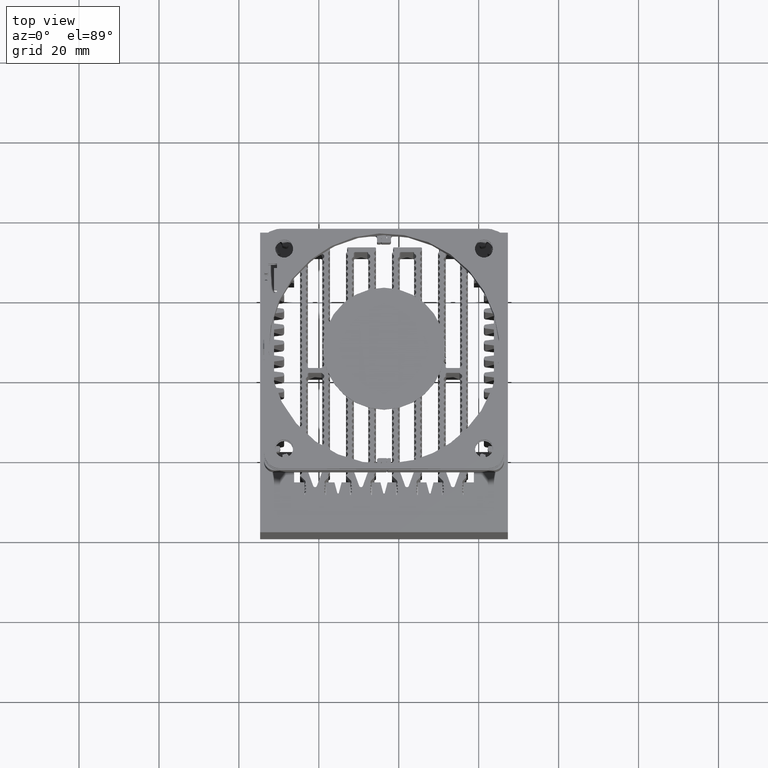
[diagram: clean part render]
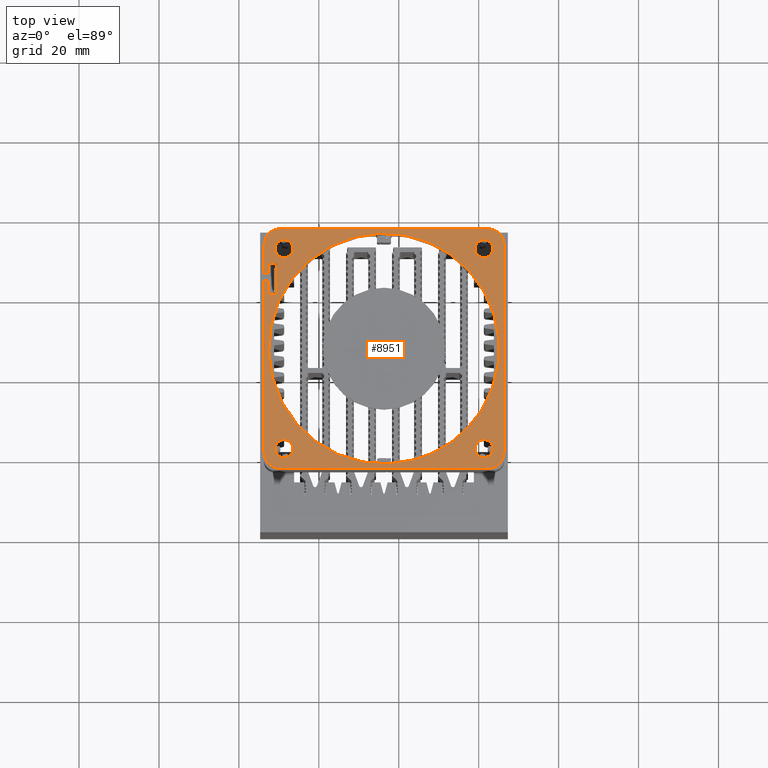
[diagram: same view with one face highlighted and labeled with its STEP entity id]
A machine part, top view. The second image highlights one B-rep face of the part: STEP entity #8951.
In plain terms, the highlighted planar face has unit normal (-0, -0, -1).
Its self-contained STEP definition (entity closure, byte-faithful):
#175 = ORIENTED_EDGE ( 'NONE', *, *, #11420, .T. ) ;
#251 = DIRECTION ( 'NONE',  ( -0.7679149873614932176, 0.6405517716668948092, -8.968310171678817306E-44 ) ) ;
#292 = DIRECTION ( 'NONE',  ( 0.000000000000000000, 6.726232628759121940E-44, -1.000000000000000000 ) ) ;
#316 = CARTESIAN_POINT ( 'NONE',  ( -16.80000000000001492, 29.50000000000004263, 0.000000000000000000 ) ) ;
#320 = CIRCLE ( 'NONE', #30676, 2.250000000000001776 ) ;
#467 = VERTEX_POINT ( 'NONE', #16506 ) ;
#697 = CARTESIAN_POINT ( 'NONE',  ( 0.000000000000000000, 0.000000000000000000, 0.000000000000000000 ) ) ;
#790 = CARTESIAN_POINT ( 'NONE',  ( -18.81872165881002346, 29.91337935940004655, -1.665334536937734811E-13 ) ) ;
#869 = DIRECTION ( 'NONE',  ( 1.000000000000000000, -5.859510407743877253E-14, 2.802596928649631964E-45 ) ) ;
#1074 = DIRECTION ( 'NONE',  ( -1.000000000000000000, -2.204349371942997434E-57, -2.802596928649630408E-45 ) ) ;
#1160 = FACE_BOUND ( 'NONE', #24459, .T. ) ;
#1396 = EDGE_CURVE ( 'NONE', #3859, #7448, #19167, .T. ) ;
#1468 = VERTEX_POINT ( 'NONE', #31006 ) ;
#1591 = CARTESIAN_POINT ( 'NONE',  ( -30.00000000000003908, -26.00000000000003908, 0.000000000000000000 ) ) ;
#1594 = VERTEX_POINT ( 'NONE', #10035 ) ;
#1791 = AXIS2_PLACEMENT_3D ( 'NONE', #20380, #7656, #30211 ) ;
#1808 = VERTEX_POINT ( 'NONE', #24646 ) ;
#1933 = CIRCLE ( 'NONE', #23584, 2.250000000000001776 ) ;
#2032 = DIRECTION ( 'NONE',  ( 0.4637459839581876686, -0.8859682061804772246, 8.968310171678822284E-44 ) ) ;
#2288 = ORIENTED_EDGE ( 'NONE', *, *, #7772, .T. ) ;
#2380 = VERTEX_POINT ( 'NONE', #14769 ) ;
#2445 = DIRECTION ( 'NONE',  ( -3.469446951953611033E-14, -1.000000000000000000, 6.726232628759115966E-44 ) ) ;
#2500 = EDGE_CURVE ( 'NONE', #12301, #467, #1933, .T. ) ;
#2773 = DIRECTION ( 'NONE',  ( 1.925127237127000026E-12, 1.000000000000000000, -6.186118493558990686E-14 ) ) ;
#2845 = VERTEX_POINT ( 'NONE', #15350 ) ;
#2976 = LINE ( 'NONE', #7825, #4858 ) ;
#3077 = LINE ( 'NONE', #25662, #10264 ) ;
#3116 = FACE_BOUND ( 'NONE', #31185, .T. ) ;
#3129 = ORIENTED_EDGE ( 'NONE', *, *, #28561, .F. ) ;
#3262 = ORIENTED_EDGE ( 'NONE', *, *, #10285, .F. ) ;
#3525 = CARTESIAN_POINT ( 'NONE',  ( -26.00000000000002842, 30.00000000000004263, 0.000000000000000000 ) ) ;
#3581 = DIRECTION ( 'NONE',  ( 0.000000000000000000, 6.726232628759121940E-44, -1.000000000000000000 ) ) ;
#3665 = CIRCLE ( 'NONE', #15517, 0.4999999999999998335 ) ;
#3703 = ORIENTED_EDGE ( 'NONE', *, *, #18834, .T. ) ;
#3738 = AXIS2_PLACEMENT_3D ( 'NONE', #6626, #6301, #6148 ) ;
#3859 = VERTEX_POINT ( 'NONE', #26520 ) ;
#3892 = CARTESIAN_POINT ( 'NONE',  ( -17.08127834119001776, 29.91337935940003945, 0.000000000000000000 ) ) ;
#4138 = CARTESIAN_POINT ( 'NONE',  ( 26.00000000000003553, -30.00000000000004974, 0.000000000000000000 ) ) ;
#4409 = CARTESIAN_POINT ( 'NONE',  ( -16.80000000000001492, 29.50000000000004263, 0.000000000000000000 ) ) ;
#4411 = VECTOR ( 'NONE', #23850, 1000.000000000000000 ) ;
#4629 = ORIENTED_EDGE ( 'NONE', *, *, #5340, .T. ) ;
#4858 = VECTOR ( 'NONE', #27818, 1000.000000000000000 ) ;
#4907 = DIRECTION ( 'NONE',  ( 0.000000000000000000, -6.726232628759121940E-44, 1.000000000000000000 ) ) ;
#5064 = VERTEX_POINT ( 'NONE', #8342 ) ;
#5124 = CARTESIAN_POINT ( 'NONE',  ( 20.40003063723189669, -20.40003063723189669, -1.372153516998349021E-42 ) ) ;
#5135 = CARTESIAN_POINT ( 'NONE',  ( -21.30000000000002203, 26.80000000000003268, 0.000000000000000000 ) ) ;
#5211 = EDGE_CURVE ( 'NONE', #467, #12301, #22961, .T. ) ;
#5281 = VECTOR ( 'NONE', #7044, 1000.000000000000000 ) ;
#5340 = EDGE_CURVE ( 'NONE', #6414, #25761, #21442, .T. ) ;
#5380 = DIRECTION ( 'NONE',  ( -0.7679149873614932176, 0.6405517716668948092, -8.968310171678817306E-44 ) ) ;
#5398 = DIRECTION ( 'NONE',  ( 1.000000000000000000, 2.204349371942997434E-57, 2.802596928649630408E-45 ) ) ;
#5437 = CARTESIAN_POINT ( 'NONE',  ( -17.08127834119001776, 29.08662064060004226, -1.110223024625156540E-13 ) ) ;
#5561 = CARTESIAN_POINT ( 'NONE',  ( -30.00000000000003197, 26.00000000000002842, 0.000000000000000000 ) ) ;
#5707 = LINE ( 'NONE', #7814, #17759 ) ;
#5710 = ORIENTED_EDGE ( 'NONE', *, *, #22754, .F. ) ;
#5788 = CARTESIAN_POINT ( 'NONE',  ( -19.10000000000001918, 29.50000000000003553, 0.000000000000000000 ) ) ;
#6001 = EDGE_CURVE ( 'NONE', #13407, #6661, #6456, .T. ) ;
#6129 = CARTESIAN_POINT ( 'NONE',  ( -21.30000000000002203, 26.80000000000003268, 0.000000000000000000 ) ) ;
#6148 = DIRECTION ( 'NONE',  ( -1.000000000000000000, -3.392348130799086764E-14, -2.802596928649631964E-45 ) ) ;
#6224 = VERTEX_POINT ( 'NONE', #29064 ) ;
#6260 = CARTESIAN_POINT ( 'NONE',  ( -18.81872165881002346, 29.08662064060004226, 0.000000000000000000 ) ) ;
#6301 = DIRECTION ( 'NONE',  ( 0.000000000000000000, 6.726232628759121940E-44, -1.000000000000000000 ) ) ;
#6306 = VERTEX_POINT ( 'NONE', #29392 ) ;
#6330 = ORIENTED_EDGE ( 'NONE', *, *, #10525, .T. ) ;
#6414 = VERTEX_POINT ( 'NONE', #17742 ) ;
#6456 = CIRCLE ( 'NONE', #1791, 2.250000000000001776 ) ;
#6626 = CARTESIAN_POINT ( 'NONE',  ( -25.00000000000004263, -25.00000000000003553, 0.000000000000000000 ) ) ;
#6659 = ORIENTED_EDGE ( 'NONE', *, *, #26169, .F. ) ;
#6661 = VERTEX_POINT ( 'NONE', #21766 ) ;
#6800 = EDGE_CURVE ( 'NONE', #11504, #1808, #23665, .T. ) ;
#6804 = CARTESIAN_POINT ( 'NONE',  ( -19.10000000000001918, 29.50000000000003553, 0.000000000000000000 ) ) ;
#6817 = ORIENTED_EDGE ( 'NONE', *, *, #14811, .F. ) ;
#6863 = DIRECTION ( 'NONE',  ( -2.204349371942998566E-57, -1.000000000000000000, 6.726232628759112979E-44 ) ) ;
#6985 = LINE ( 'NONE', #14871, #8699 ) ;
#7038 = DIRECTION ( 'NONE',  ( 0.000000000000000000, 6.726232628759121940E-44, -1.000000000000000000 ) ) ;
#7044 = DIRECTION ( 'NONE',  ( -2.204349371942998566E-57, -1.000000000000000000, 6.726232628759112979E-44 ) ) ;
#7246 = CARTESIAN_POINT ( 'NONE',  ( 0.000000000000000000, 0.000000000000000000, 0.000000000000000000 ) ) ;
#7291 = VERTEX_POINT ( 'NONE', #14935 ) ;
#7397 = ORIENTED_EDGE ( 'NONE', *, *, #16866, .T. ) ;
#7413 = VERTEX_POINT ( 'NONE', #5437 ) ;
#7419 = DIRECTION ( 'NONE',  ( 2.775557561562888827E-14, 1.000000000000000000, -6.726232628759115966E-44 ) ) ;
#7448 = VERTEX_POINT ( 'NONE', #28473 ) ;
#7485 = VERTEX_POINT ( 'NONE', #23781 ) ;
#7576 = DIRECTION ( 'NONE',  ( 0.000000000000000000, -6.726232628759121940E-44, 1.000000000000000000 ) ) ;
#7656 = DIRECTION ( 'NONE',  ( 0.000000000000000000, 6.726232628759121940E-44, -1.000000000000000000 ) ) ;
#7772 = EDGE_CURVE ( 'NONE', #19438, #9939, #5707, .T. ) ;
#7814 = CARTESIAN_POINT ( 'NONE',  ( -26.00000000000002842, 30.00000000000004263, 0.000000000000000000 ) ) ;
#7825 = CARTESIAN_POINT ( 'NONE',  ( 26.00000000000003553, -30.00000000000004974, 0.000000000000000000 ) ) ;
#7831 = CIRCLE ( 'NONE', #31585, 4.000000000000003553 ) ;
#7912 = CIRCLE ( 'NONE', #8431, 0.5000000000000004441 ) ;
#7940 = ORIENTED_EDGE ( 'NONE', *, *, #29201, .T. ) ;
#7950 = DIRECTION ( 'NONE',  ( 0.000000000000000000, -6.726232628759121940E-44, 1.000000000000000000 ) ) ;
#7968 = AXIS2_PLACEMENT_3D ( 'NONE', #6804, #9383, #2445 ) ;
#8013 = ORIENTED_EDGE ( 'NONE', *, *, #13966, .T. ) ;
#8333 = VERTEX_POINT ( 'NONE', #5124 ) ;
#8342 = CARTESIAN_POINT ( 'NONE',  ( -26.00000000000003553, -30.00000000000003908, 0.000000000000000000 ) ) ;
#8431 = AXIS2_PLACEMENT_3D ( 'NONE', #316, #29517, #7419 ) ;
#8541 = EDGE_LOOP ( 'NONE', ( #3262, #30468 ) ) ;
#8699 = VECTOR ( 'NONE', #29400, 1000.000000000000000 ) ;
#8951 = ADVANCED_FACE ( 'NONE', ( #27958, #1160, #25227, #10996, #30686, #3116 ), #25543, .F. ) ;
#9131 = DIRECTION ( 'NONE',  ( 1.000000000000000000, 0.000000000000000000, 2.802596928649631653E-45 ) ) ;
#9383 = DIRECTION ( 'NONE',  ( 0.000000000000000000, -6.726232628759121940E-44, 1.000000000000000000 ) ) ;
#9442 = CARTESIAN_POINT ( 'NONE',  ( -25.00000000000004263, 25.00000000000003908, 0.000000000000000000 ) ) ;
#9562 = VECTOR ( 'NONE', #18368, 1000.000000000000000 ) ;
#9939 = VERTEX_POINT ( 'NONE', #29639 ) ;
#9968 = DIRECTION ( 'NONE',  ( 0.9645755590524175416, -0.2638067301619048122, 3.082856621514592080E-44 ) ) ;
#9997 = AXIS2_PLACEMENT_3D ( 'NONE', #20829, #3581, #18726 ) ;
#10035 = CARTESIAN_POINT ( 'NONE',  ( -22.75000000000004263, 25.00000000000003908, 0.000000000000000000 ) ) ;
#10152 = CARTESIAN_POINT ( 'NONE',  ( -26.00000000000003553, -26.00000000000002842, 0.000000000000000000 ) ) ;
#10264 = VECTOR ( 'NONE', #12584, 1000.000000000000000 ) ;
#10285 = EDGE_CURVE ( 'NONE', #6306, #1468, #27615, .T. ) ;
#10335 = EDGE_CURVE ( 'NONE', #1468, #6306, #320, .T. ) ;
#10459 = DIRECTION ( 'NONE',  ( 0.000000000000000000, -6.726232628759121940E-44, 1.000000000000000000 ) ) ;
#10525 = EDGE_CURVE ( 'NONE', #29249, #8333, #16297, .T. ) ;
#10531 = DIRECTION ( 'NONE',  ( -2.802596928649630408E-45, -6.726232628759121940E-44, 1.000000000000000000 ) ) ;
#10996 = FACE_BOUND ( 'NONE', #8541, .T. ) ;
#11248 = VERTEX_POINT ( 'NONE', #19540 ) ;
#11361 = ORIENTED_EDGE ( 'NONE', *, *, #22539, .T. ) ;
#11420 = EDGE_CURVE ( 'NONE', #6224, #14055, #17580, .T. ) ;
#11504 = VERTEX_POINT ( 'NONE', #4138 ) ;
#11670 = DIRECTION ( 'NONE',  ( 0.000000000000000000, 1.000000000000000000, -6.726232628759109992E-44 ) ) ;
#11672 = VERTEX_POINT ( 'NONE', #24770 ) ;
#11744 = DIRECTION ( 'NONE',  ( 1.000000000000000000, 2.204349371942997434E-57, 2.802596928649630408E-45 ) ) ;
#11873 = DIRECTION ( 'NONE',  ( -1.000000000000000000, -3.392348130799086764E-14, -2.802596928649631964E-45 ) ) ;
#12141 = ORIENTED_EDGE ( 'NONE', *, *, #15152, .F. ) ;
#12301 = VERTEX_POINT ( 'NONE', #22940 ) ;
#12444 = DIRECTION ( 'NONE',  ( -0.5625566823793881621, -0.8267587187990799169, 2.242077542919708309E-44 ) ) ;
#12584 = DIRECTION ( 'NONE',  ( -2.204349371942998566E-57, -1.000000000000000000, 6.726232628759112979E-44 ) ) ;
#12598 = EDGE_CURVE ( 'NONE', #26734, #14055, #22365, .T. ) ;
#12798 = ORIENTED_EDGE ( 'NONE', *, *, #18098, .F. ) ;
#13190 = AXIS2_PLACEMENT_3D ( 'NONE', #14921, #24766, #251 ) ;
#13202 = ORIENTED_EDGE ( 'NONE', *, *, #1396, .T. ) ;
#13407 = VERTEX_POINT ( 'NONE', #19711 ) ;
#13545 = CIRCLE ( 'NONE', #31601, 4.000000000000003553 ) ;
#13685 = CIRCLE ( 'NONE', #28644, 2.250000000000001776 ) ;
#13966 = EDGE_CURVE ( 'NONE', #26734, #11248, #28033, .T. ) ;
#14028 = ORIENTED_EDGE ( 'NONE', *, *, #30217, .F. ) ;
#14055 = VERTEX_POINT ( 'NONE', #6260 ) ;
#14126 = CARTESIAN_POINT ( 'NONE',  ( -25.00000000000004263, -25.00000000000003553, 0.000000000000000000 ) ) ;
#14158 = CARTESIAN_POINT ( 'NONE',  ( -16.80000000000001492, 30.00000000000004263, 0.000000000000000000 ) ) ;
#14225 = AXIS2_PLACEMENT_3D ( 'NONE', #25757, #25913, #18801 ) ;
#14299 = VECTOR ( 'NONE', #20166, 1000.000000000000000 ) ;
#14571 = CARTESIAN_POINT ( 'NONE',  ( -26.00000000000002842, 26.00000000000003908, 0.000000000000000000 ) ) ;
#14769 = CARTESIAN_POINT ( 'NONE',  ( -16.80000000000001492, 29.00000000000004263, 0.000000000000000000 ) ) ;
#14811 = EDGE_CURVE ( 'NONE', #28484, #13407, #20236, .T. ) ;
#14871 = CARTESIAN_POINT ( 'NONE',  ( -13.50000000000001776, 29.00000000000002132, 0.000000000000000000 ) ) ;
#14921 = CARTESIAN_POINT ( 'NONE',  ( 0.000000000000000000, 0.000000000000000000, 0.000000000000000000 ) ) ;
#14935 = CARTESIAN_POINT ( 'NONE',  ( 30.00000000000003908, 26.00000000000002842, 0.000000000000000000 ) ) ;
#15117 = CARTESIAN_POINT ( 'NONE',  ( -22.15434738538002435, 18.47991861259001212, 0.000000000000000000 ) ) ;
#15121 = DIRECTION ( 'NONE',  ( 0.8859682061804772246, 0.4637459839581876686, -4.484155085839411142E-44 ) ) ;
#15146 = CARTESIAN_POINT ( 'NONE',  ( -13.50000000000001776, 29.00000000000002132, 0.000000000000000000 ) ) ;
#15152 = EDGE_CURVE ( 'NONE', #6414, #5064, #7831, .T. ) ;
#15350 = CARTESIAN_POINT ( 'NONE',  ( -23.00657153609002137, 26.04342846391002908, 0.000000000000000000 ) ) ;
#15517 = AXIS2_PLACEMENT_3D ( 'NONE', #5788, #10459, #18033 ) ;
#15658 = EDGE_CURVE ( 'NONE', #7291, #1808, #23953, .T. ) ;
#15814 = EDGE_LOOP ( 'NONE', ( #12798, #16072, #28883, #18978, #12141, #4629, #24396, #2288, #26818, #175, #23897, #8013, #7397, #11361, #6659, #26546, #26711, #3703, #19513, #13202 ) ) ;
#16072 = ORIENTED_EDGE ( 'NONE', *, *, #15658, .T. ) ;
#16297 = CIRCLE ( 'NONE', #13190, 28.85000000000004050 ) ;
#16506 = CARTESIAN_POINT ( 'NONE',  ( 26.04342846391003619, 23.00657153609001782, 0.000000000000000000 ) ) ;
#16576 = VERTEX_POINT ( 'NONE', #5135 ) ;
#16658 = CARTESIAN_POINT ( 'NONE',  ( -13.50000000000002132, 26.80000000000003268, 0.000000000000000000 ) ) ;
#16700 = DIRECTION ( 'NONE',  ( 0.8859682061804772246, 0.4637459839581876686, -4.484155085839411142E-44 ) ) ;
#16866 = EDGE_CURVE ( 'NONE', #11248, #16576, #24134, .T. ) ;
#17230 = AXIS2_PLACEMENT_3D ( 'NONE', #4409, #21658, #12444 ) ;
#17239 = CARTESIAN_POINT ( 'NONE',  ( 26.00000000000002132, -26.00000000000003908, 0.000000000000000000 ) ) ;
#17361 = AXIS2_PLACEMENT_3D ( 'NONE', #14126, #23977, #11873 ) ;
#17384 = VERTEX_POINT ( 'NONE', #16658 ) ;
#17399 = CARTESIAN_POINT ( 'NONE',  ( -25.00000000000004263, 25.00000000000003908, 0.000000000000000000 ) ) ;
#17580 = LINE ( 'NONE', #790, #14299 ) ;
#17615 = CARTESIAN_POINT ( 'NONE',  ( 0.000000000000000000, 0.000000000000000000, 0.000000000000000000 ) ) ;
#17742 = CARTESIAN_POINT ( 'NONE',  ( -30.00000000000003908, -26.00000000000003908, 0.000000000000000000 ) ) ;
#17751 = VECTOR ( 'NONE', #2773, 1000.000000000000000 ) ;
#17759 = VECTOR ( 'NONE', #5398, 1000.000000000000000 ) ;
#17829 = VECTOR ( 'NONE', #1074, 1000.000000000000000 ) ;
#17961 = EDGE_CURVE ( 'NONE', #3859, #22133, #7912, .T. ) ;
#18033 = DIRECTION ( 'NONE',  ( 0.5625566823793881621, 0.8267587187990799169, -2.242077542919708309E-44 ) ) ;
#18098 = EDGE_CURVE ( 'NONE', #7291, #7448, #13545, .T. ) ;
#18179 = VECTOR ( 'NONE', #11744, 1000.000000000000000 ) ;
#18312 = EDGE_CURVE ( 'NONE', #11504, #5064, #2976, .T. ) ;
#18368 = DIRECTION ( 'NONE',  ( 1.000000000000000000, 2.204349371942997434E-57, 2.802596928649630408E-45 ) ) ;
#18433 = DIRECTION ( 'NONE',  ( 1.000000000000000000, 2.204349371942997151E-57, 2.802596928649630408E-45 ) ) ;
#18586 = EDGE_CURVE ( 'NONE', #7413, #2380, #30089, .T. ) ;
#18644 = DIRECTION ( 'NONE',  ( 0.000000000000000000, 6.726232628759121940E-44, -1.000000000000000000 ) ) ;
#18726 = DIRECTION ( 'NONE',  ( -1.000000000000000000, 3.546545773108135933E-14, -2.802596928649631964E-45 ) ) ;
#18792 = CARTESIAN_POINT ( 'NONE',  ( 26.00000000000003553, 26.00000000000002842, 0.000000000000000000 ) ) ;
#18801 = DIRECTION ( 'NONE',  ( -0.8859682061804772246, -0.4637459839581876686, 4.484155085839411142E-44 ) ) ;
#18834 = EDGE_CURVE ( 'NONE', #7413, #22133, #20048, .T. ) ;
#18978 = ORIENTED_EDGE ( 'NONE', *, *, #18312, .T. ) ;
#19167 = LINE ( 'NONE', #14158, #18179 ) ;
#19307 = VERTEX_POINT ( 'NONE', #15146 ) ;
#19438 = VERTEX_POINT ( 'NONE', #3525 ) ;
#19513 = ORIENTED_EDGE ( 'NONE', *, *, #17961, .F. ) ;
#19540 = CARTESIAN_POINT ( 'NONE',  ( -21.30000000000002203, 29.00000000000002132, 0.000000000000000000 ) ) ;
#19711 = CARTESIAN_POINT ( 'NONE',  ( -23.00657153609002137, -26.04342846391003974, 0.000000000000000000 ) ) ;
#19791 = CIRCLE ( 'NONE', #9997, 2.250000000000001776 ) ;
#19978 = EDGE_CURVE ( 'NONE', #8333, #11672, #29067, .T. ) ;
#19980 = DIRECTION ( 'NONE',  ( 0.000000000000000000, -6.726232628759121940E-44, 1.000000000000000000 ) ) ;
#20048 = LINE ( 'NONE', #24877, #17751 ) ;
#20166 = DIRECTION ( 'NONE',  ( -1.985287463286999814E-12, -1.000000000000000000, -5.493201602962992836E-13 ) ) ;
#20236 = CIRCLE ( 'NONE', #3738, 2.250000000000001776 ) ;
#20380 = CARTESIAN_POINT ( 'NONE',  ( -25.00000000000004263, -25.00000000000003553, 0.000000000000000000 ) ) ;
#20401 = CARTESIAN_POINT ( 'NONE',  ( 25.00000000000003553, 25.00000000000003553, 0.000000000000000000 ) ) ;
#20812 = AXIS2_PLACEMENT_3D ( 'NONE', #14571, #4907, #11670 ) ;
#20829 = CARTESIAN_POINT ( 'NONE',  ( -25.00000000000004263, 25.00000000000003908, 0.000000000000000000 ) ) ;
#21085 = CARTESIAN_POINT ( 'NONE',  ( -19.10000000000001918, 29.00000000000004263, 0.000000000000000000 ) ) ;
#21120 = EDGE_LOOP ( 'NONE', ( #26220, #6817, #22900 ) ) ;
#21223 = CARTESIAN_POINT ( 'NONE',  ( 25.00000000000002842, -25.00000000000003908, 0.000000000000000000 ) ) ;
#21435 = LINE ( 'NONE', #6129, #9562 ) ;
#21442 = LINE ( 'NONE', #1591, #4411 ) ;
#21658 = DIRECTION ( 'NONE',  ( 0.000000000000000000, -6.726232628759121940E-44, 1.000000000000000000 ) ) ;
#21766 = CARTESIAN_POINT ( 'NONE',  ( -27.25000000000003908, -25.00000000000003197, 0.000000000000000000 ) ) ;
#22133 = VERTEX_POINT ( 'NONE', #3892 ) ;
#22365 = CIRCLE ( 'NONE', #7968, 0.5000000000000004441 ) ;
#22539 = EDGE_CURVE ( 'NONE', #16576, #17384, #21435, .T. ) ;
#22754 = EDGE_CURVE ( 'NONE', #2845, #1594, #13685, .T. ) ;
#22760 = VECTOR ( 'NONE', #6863, 1000.000000000000000 ) ;
#22900 = ORIENTED_EDGE ( 'NONE', *, *, #24428, .F. ) ;
#22940 = CARTESIAN_POINT ( 'NONE',  ( 27.25000000000003908, 25.00000000000003197, 0.000000000000000000 ) ) ;
#22961 = CIRCLE ( 'NONE', #29641, 2.250000000000001776 ) ;
#23185 = CARTESIAN_POINT ( 'NONE',  ( -19.10000000000001918, 29.00000000000004263, 0.000000000000000000 ) ) ;
#23282 = AXIS2_PLACEMENT_3D ( 'NONE', #9442, #7038, #16700 ) ;
#23388 = AXIS2_PLACEMENT_3D ( 'NONE', #17615, #7950, #5380 ) ;
#23584 = AXIS2_PLACEMENT_3D ( 'NONE', #20401, #30233, #869 ) ;
#23665 = CIRCLE ( 'NONE', #25231, 4.000000000000007105 ) ;
#23781 = CARTESIAN_POINT ( 'NONE',  ( -27.25000000000003197, 25.00000000000004263, 0.000000000000000000 ) ) ;
#23790 = CARTESIAN_POINT ( 'NONE',  ( 30.00000000000003908, 26.00000000000002842, 0.000000000000000000 ) ) ;
#23795 = DIRECTION ( 'NONE',  ( 0.000000000000000000, -6.726232628759121940E-44, 1.000000000000000000 ) ) ;
#23850 = DIRECTION ( 'NONE',  ( 2.204349371942998566E-57, 1.000000000000000000, -6.726232628759112979E-44 ) ) ;
#23897 = ORIENTED_EDGE ( 'NONE', *, *, #12598, .F. ) ;
#23953 = LINE ( 'NONE', #23790, #22760 ) ;
#23977 = DIRECTION ( 'NONE',  ( 0.000000000000000000, 6.726232628759121940E-44, -1.000000000000000000 ) ) ;
#24026 = ORIENTED_EDGE ( 'NONE', *, *, #19978, .T. ) ;
#24134 = LINE ( 'NONE', #31540, #5281 ) ;
#24145 = CARTESIAN_POINT ( 'NONE',  ( 25.00000000000003553, 25.00000000000003553, 0.000000000000000000 ) ) ;
#24396 = ORIENTED_EDGE ( 'NONE', *, *, #29959, .F. ) ;
#24428 = EDGE_CURVE ( 'NONE', #6661, #28484, #31237, .T. ) ;
#24459 = EDGE_LOOP ( 'NONE', ( #5710, #14028, #3129 ) ) ;
#24646 = CARTESIAN_POINT ( 'NONE',  ( 30.00000000000003908, -26.00000000000003908, 0.000000000000000000 ) ) ;
#24766 = DIRECTION ( 'NONE',  ( 0.000000000000000000, -6.726232628759121940E-44, 1.000000000000000000 ) ) ;
#24770 = CARTESIAN_POINT ( 'NONE',  ( 27.82800487866003536, -7.610824165169009170, 0.000000000000000000 ) ) ;
#24815 = DIRECTION ( 'NONE',  ( 0.000000000000000000, -1.000000000000000000, 6.726232628759109992E-44 ) ) ;
#24875 = AXIS2_PLACEMENT_3D ( 'NONE', #7246, #19980, #9968 ) ;
#24877 = CARTESIAN_POINT ( 'NONE',  ( -17.08127834119001776, 29.08662064060004226, -1.110223024625156540E-13 ) ) ;
#25150 = DIRECTION ( 'NONE',  ( -1.000000000000000000, 0.000000000000000000, -2.802596928649631653E-45 ) ) ;
#25227 = FACE_BOUND ( 'NONE', #21120, .T. ) ;
#25231 = AXIS2_PLACEMENT_3D ( 'NONE', #17239, #7576, #24815 ) ;
#25543 = PLANE ( 'NONE',  #27659 ) ;
#25662 = CARTESIAN_POINT ( 'NONE',  ( -13.50000000000001776, 29.00000000000002132, 0.000000000000000000 ) ) ;
#25757 = CARTESIAN_POINT ( 'NONE',  ( 25.00000000000002842, -25.00000000000003908, 0.000000000000000000 ) ) ;
#25761 = VERTEX_POINT ( 'NONE', #5561 ) ;
#25913 = DIRECTION ( 'NONE',  ( 0.000000000000000000, 6.726232628759121940E-44, -1.000000000000000000 ) ) ;
#26017 = EDGE_LOOP ( 'NONE', ( #31325, #30527 ) ) ;
#26052 = EDGE_CURVE ( 'NONE', #19307, #2380, #6985, .T. ) ;
#26169 = EDGE_CURVE ( 'NONE', #19307, #17384, #3077, .T. ) ;
#26220 = ORIENTED_EDGE ( 'NONE', *, *, #6001, .F. ) ;
#26520 = CARTESIAN_POINT ( 'NONE',  ( -16.80000000000001492, 30.00000000000004263, 0.000000000000000000 ) ) ;
#26546 = ORIENTED_EDGE ( 'NONE', *, *, #26052, .T. ) ;
#26711 = ORIENTED_EDGE ( 'NONE', *, *, #18586, .F. ) ;
#26715 = CARTESIAN_POINT ( 'NONE',  ( -22.75000000000004263, -25.00000000000003553, 0.000000000000000000 ) ) ;
#26734 = VERTEX_POINT ( 'NONE', #23185 ) ;
#26818 = ORIENTED_EDGE ( 'NONE', *, *, #27891, .F. ) ;
#27253 = DIRECTION ( 'NONE',  ( 0.000000000000000000, -6.726232628759121940E-44, 1.000000000000000000 ) ) ;
#27615 = CIRCLE ( 'NONE', #14225, 2.250000000000001776 ) ;
#27659 = AXIS2_PLACEMENT_3D ( 'NONE', #697, #10531, #18433 ) ;
#27818 = DIRECTION ( 'NONE',  ( -1.000000000000000000, -2.204349371942997434E-57, -2.802596928649630408E-45 ) ) ;
#27891 = EDGE_CURVE ( 'NONE', #6224, #9939, #3665, .T. ) ;
#27958 = FACE_OUTER_BOUND ( 'NONE', #15814, .T. ) ;
#28033 = LINE ( 'NONE', #21085, #17829 ) ;
#28473 = CARTESIAN_POINT ( 'NONE',  ( 26.00000000000003553, 30.00000000000002487, 0.000000000000000000 ) ) ;
#28484 = VERTEX_POINT ( 'NONE', #26715 ) ;
#28506 = DIRECTION ( 'NONE',  ( 0.000000000000000000, 6.726232628759121940E-44, -1.000000000000000000 ) ) ;
#28561 = EDGE_CURVE ( 'NONE', #1594, #7485, #30490, .T. ) ;
#28644 = AXIS2_PLACEMENT_3D ( 'NONE', #17399, #292, #15121 ) ;
#28883 = ORIENTED_EDGE ( 'NONE', *, *, #6800, .F. ) ;
#29064 = CARTESIAN_POINT ( 'NONE',  ( -18.81872165881002346, 29.91337935940004655, -1.665334536937734811E-13 ) ) ;
#29067 = CIRCLE ( 'NONE', #23388, 28.85000000000004050 ) ;
#29201 = EDGE_CURVE ( 'NONE', #11672, #29249, #30539, .T. ) ;
#29249 = VERTEX_POINT ( 'NONE', #15117 ) ;
#29392 = CARTESIAN_POINT ( 'NONE',  ( 23.00657153609002137, -26.04342846391002908, 0.000000000000000000 ) ) ;
#29400 = DIRECTION ( 'NONE',  ( -1.000000000000000000, -2.204349371942997434E-57, -2.802596928649630408E-45 ) ) ;
#29517 = DIRECTION ( 'NONE',  ( 0.000000000000000000, -6.726232628759121940E-44, 1.000000000000000000 ) ) ;
#29576 = CIRCLE ( 'NONE', #20812, 4.000000000000007105 ) ;
#29639 = CARTESIAN_POINT ( 'NONE',  ( -19.10000000000001918, 30.00000000000003553, 0.000000000000000000 ) ) ;
#29641 = AXIS2_PLACEMENT_3D ( 'NONE', #24145, #28506, #2032 ) ;
#29959 = EDGE_CURVE ( 'NONE', #19438, #25761, #29576, .T. ) ;
#30089 = CIRCLE ( 'NONE', #17230, 0.4999999999999998335 ) ;
#30211 = DIRECTION ( 'NONE',  ( 0.8859682061804772246, -0.4637459839581876686, 3.363116314379557983E-44 ) ) ;
#30217 = EDGE_CURVE ( 'NONE', #7485, #2845, #19791, .T. ) ;
#30233 = DIRECTION ( 'NONE',  ( 0.000000000000000000, 6.726232628759121940E-44, -1.000000000000000000 ) ) ;
#30468 = ORIENTED_EDGE ( 'NONE', *, *, #10335, .F. ) ;
#30490 = CIRCLE ( 'NONE', #23282, 2.250000000000001776 ) ;
#30527 = ORIENTED_EDGE ( 'NONE', *, *, #2500, .F. ) ;
#30539 = CIRCLE ( 'NONE', #24875, 28.85000000000005471 ) ;
#30676 = AXIS2_PLACEMENT_3D ( 'NONE', #21223, #18644, #31389 ) ;
#30686 = FACE_BOUND ( 'NONE', #26017, .T. ) ;
#31006 = CARTESIAN_POINT ( 'NONE',  ( 27.25000000000002487, -25.00000000000004263, 0.000000000000000000 ) ) ;
#31185 = EDGE_LOOP ( 'NONE', ( #6330, #24026, #7940 ) ) ;
#31237 = CIRCLE ( 'NONE', #17361, 2.250000000000001776 ) ;
#31325 = ORIENTED_EDGE ( 'NONE', *, *, #5211, .F. ) ;
#31389 = DIRECTION ( 'NONE',  ( 1.000000000000000000, -2.775557561562889142E-14, 1.121038771459852786E-44 ) ) ;
#31540 = CARTESIAN_POINT ( 'NONE',  ( -21.30000000000002203, 29.00000000000002132, 0.000000000000000000 ) ) ;
#31585 = AXIS2_PLACEMENT_3D ( 'NONE', #10152, #27253, #25150 ) ;
#31601 = AXIS2_PLACEMENT_3D ( 'NONE', #18792, #23795, #9131 ) ;